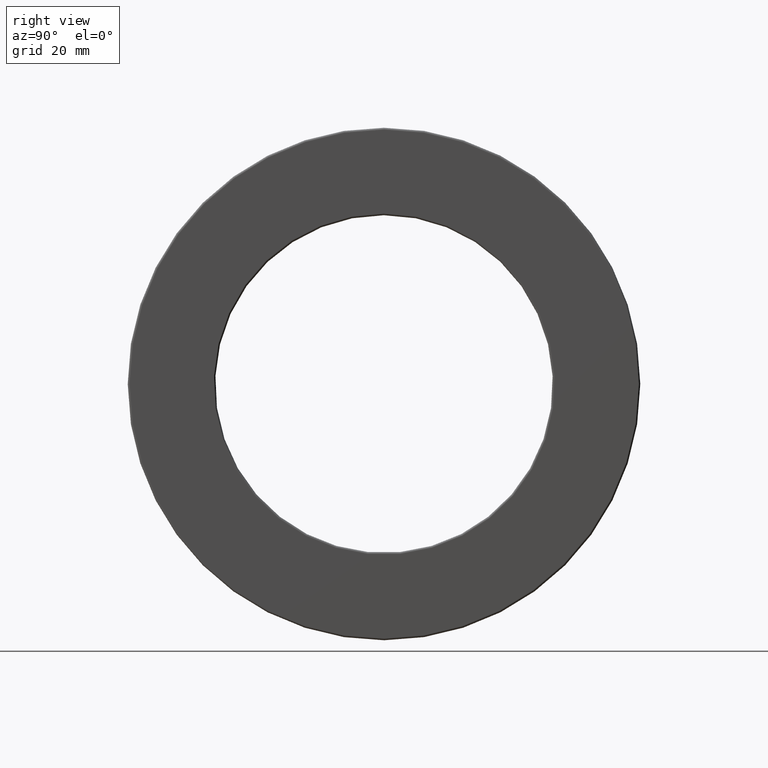
[diagram: clean part render]
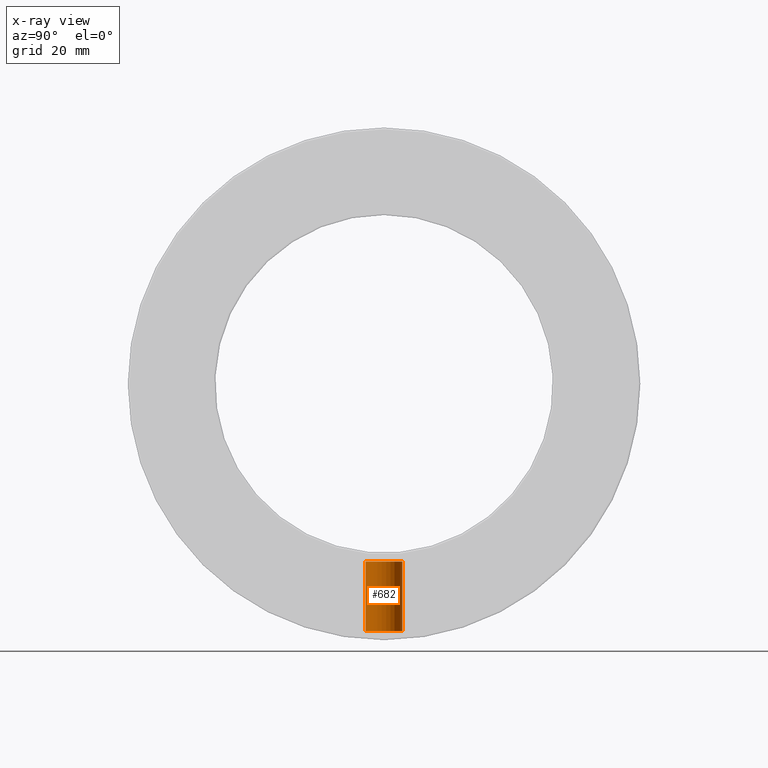
[diagram: x-ray — body ghosted, one internal face saturated and labeled with its STEP entity id]
A machine part, right view, then the same camera in x-ray: the body is ghosted and one INTERNAL B-rep face — a face not visible from any outside direction — is saturated and labeled: STEP entity #682.
In plain terms, the highlighted cylindrical surface (bore or boss wall) has radius 4.7625 mm, axis along (0, -0, -1).
Its self-contained STEP definition (entity closure, byte-faithful):
#73 = EDGE_CURVE ( 'NONE', #172, #172, #710, .T. ) ;
#86 = EDGE_LOOP ( 'NONE', ( #819 ) ) ;
#146 = DIRECTION ( 'NONE',  ( 0.0000000000000000000, -3.491481338843133400E-015, -1.000000000000000000 ) ) ;
#172 = VERTEX_POINT ( 'NONE', #438 ) ;
#381 = EDGE_LOOP ( 'NONE', ( #487 ) ) ;
#400 = DIRECTION ( 'NONE',  ( 0.0000000000000000000, 1.000000000000000000, -2.913971193241881900E-015 ) ) ;
#423 = CYLINDRICAL_SURFACE ( 'NONE', #1362, 0.1874999999999999700 ) ;
#438 = CARTESIAN_POINT ( 'NONE',  ( 0.0000000000000000000, 0.1874999999999910900, -2.519375000000000600 ) ) ;
#487 = ORIENTED_EDGE ( 'NONE', *, *, #73, .F. ) ;
#570 = AXIS2_PLACEMENT_3D ( 'NONE', #1038, #146, #1212 ) ;
#682 = ADVANCED_FACE ( 'NONE', ( #847, #1408 ), #423, .T. ) ;
#710 = CIRCLE ( 'NONE', #1424, 0.1874999999999999200 ) ;
#819 = ORIENTED_EDGE ( 'NONE', *, *, #1068, .T. ) ;
#832 = DIRECTION ( 'NONE',  ( 0.0000000000000000000, -3.491481338843133400E-015, -1.000000000000000000 ) ) ;
#847 = FACE_OUTER_BOUND ( 'NONE', #86, .T. ) ;
#850 = CARTESIAN_POINT ( 'NONE',  ( 0.0000000000000000000, -8.796350798047919600E-015, -2.519375000000000100 ) ) ;
#950 = CARTESIAN_POINT ( 'NONE',  ( 0.0000000000000000000, 0.0000000000000000000, 0.0000000000000000000 ) ) ;
#1016 = CARTESIAN_POINT ( 'NONE',  ( 0.0000000000000000000, 0.1874999999999937300, -1.808750000000000700 ) ) ;
#1038 = CARTESIAN_POINT ( 'NONE',  ( 0.0000000000000000000, -6.315216871632518300E-015, -1.808750000000000300 ) ) ;
#1068 = EDGE_CURVE ( 'NONE', #1194, #1194, #1096, .T. ) ;
#1092 = DIRECTION ( 'NONE',  ( 0.0000000000000000000, -3.491481338843133400E-015, -1.000000000000000000 ) ) ;
#1096 = CIRCLE ( 'NONE', #570, 0.1875000000000000600 ) ;
#1194 = VERTEX_POINT ( 'NONE', #1016 ) ;
#1212 = DIRECTION ( 'NONE',  ( 0.0000000000000000000, 1.000000000000000000, -2.913971193241880000E-015 ) ) ;
#1273 = DIRECTION ( 'NONE',  ( 0.0000000000000000000, 1.000000000000000000, -3.491481338843133400E-015 ) ) ;
#1362 = AXIS2_PLACEMENT_3D ( 'NONE', #950, #832, #1273 ) ;
#1408 = FACE_OUTER_BOUND ( 'NONE', #381, .T. ) ;
#1424 = AXIS2_PLACEMENT_3D ( 'NONE', #850, #1092, #400 ) ;